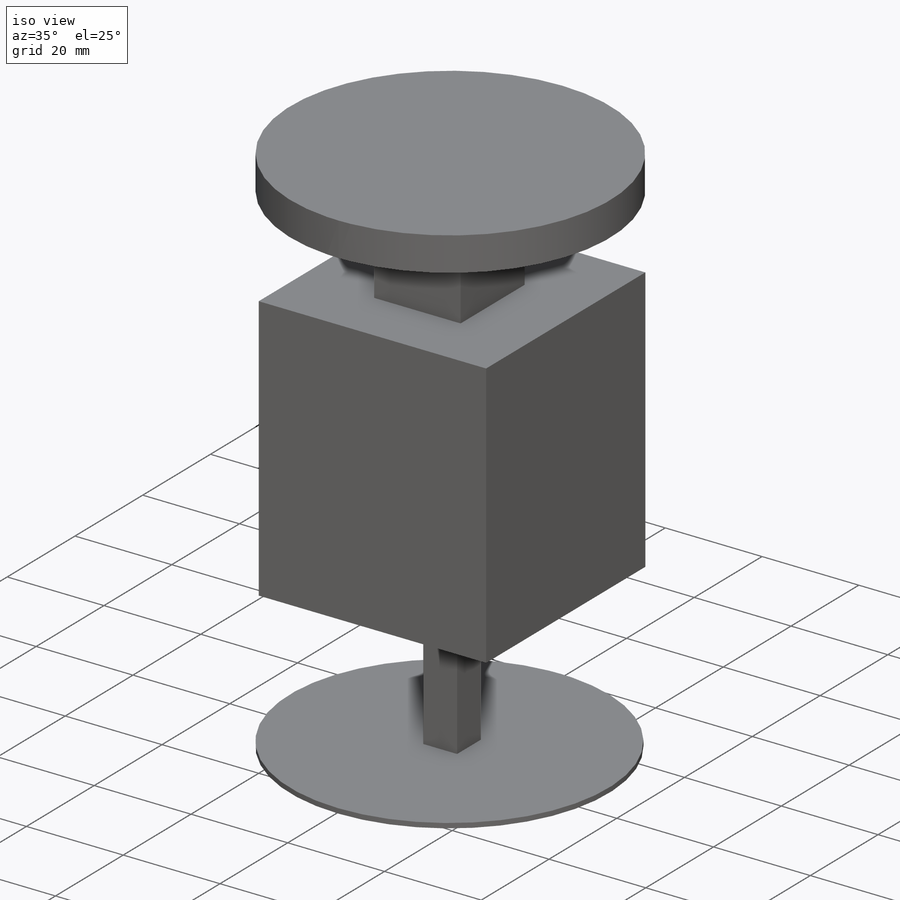
[diagram: iso view]
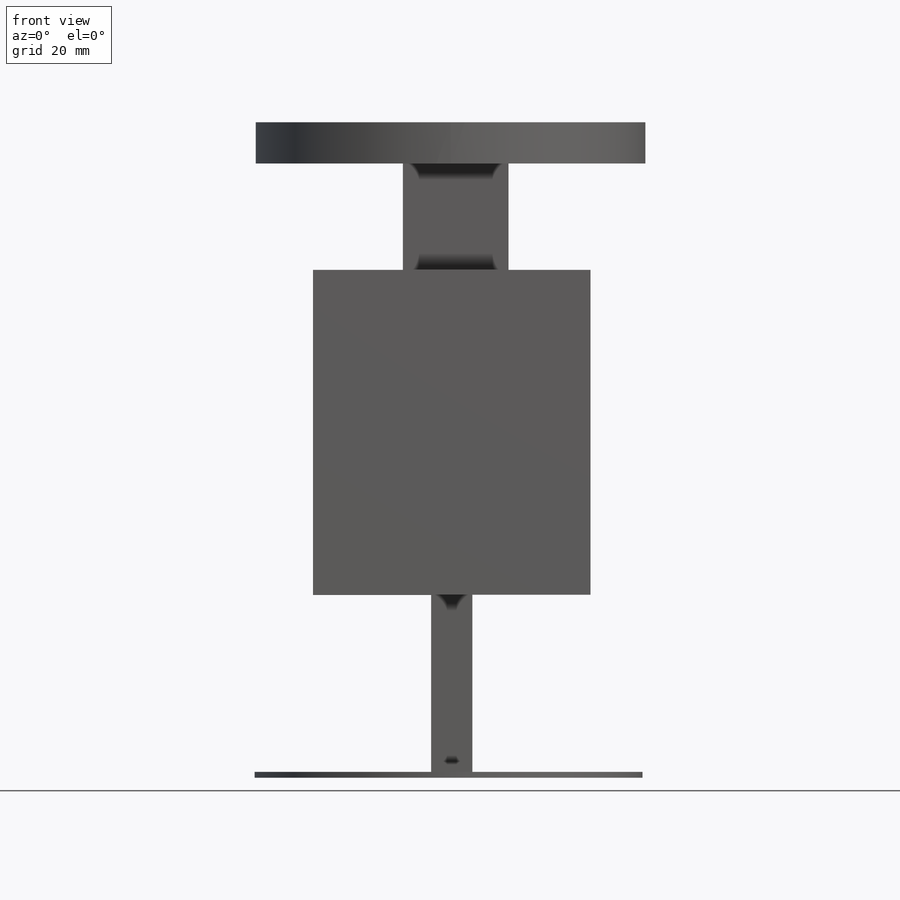
[diagram: front view]
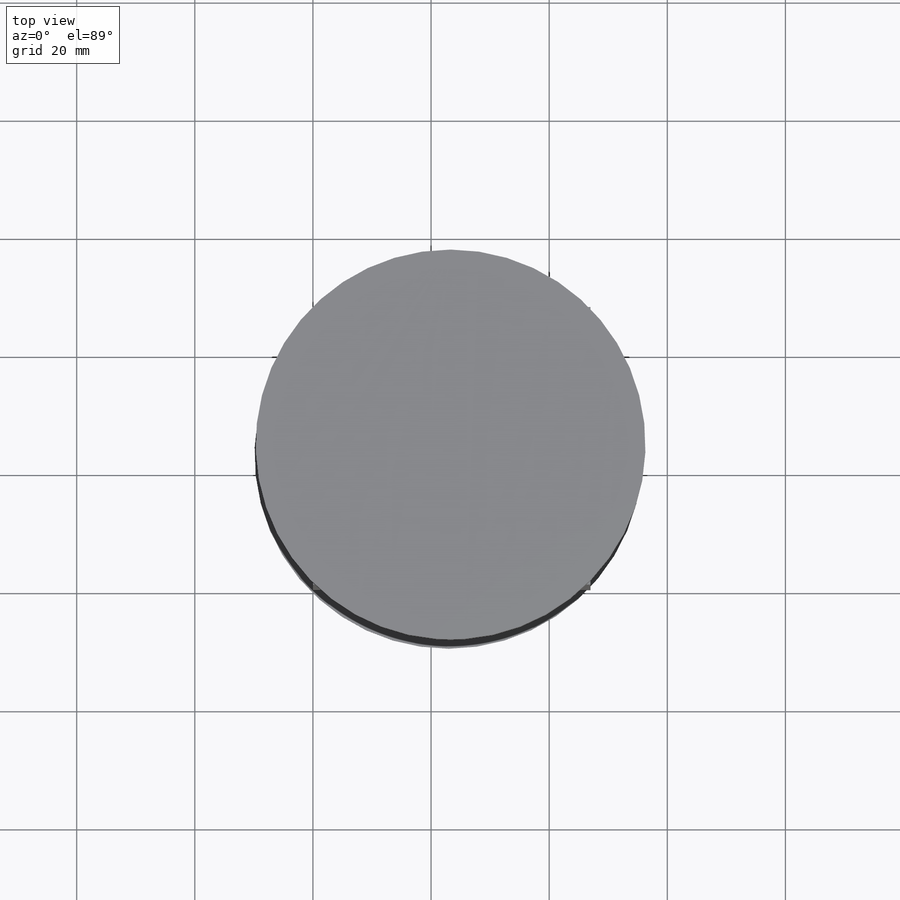
[diagram: top view]
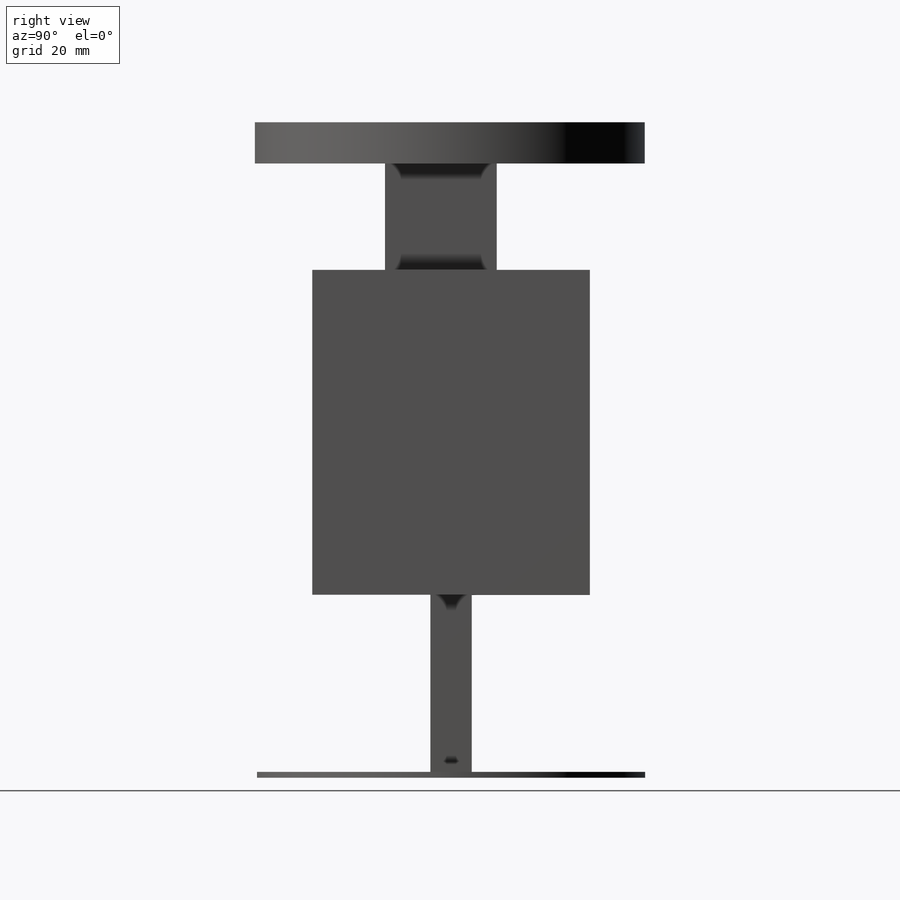
[diagram: right view]
SOLIDWORKS PART (.sldprt)
format: sldprt  version: not decoded by parser v0  size: 220,160 bytes
history: native  units: mm
features: sketch x8, extrude x4, cut_extrude x4, material x1 (+13 scaffold rows collapsed)
feature tree (30):
  scaffold x13  (default folders/planes/origin — collapsed)
  material  "Material <not specified>"
  sketch  "Sketch1"  dims[D1=47.0mm D2=47.0mm]
  extrude  "Boss-Extrude1"  Depth=85mm
  sketch  "Sketch2"  dims[D1=30.0mm]
  cut_extrude  "Cut-Extrude1"  Depth=20mm
  sketch  "Sketch3"
  cut_extrude  "Cut-Extrude2"  Depth=20mm
  sketch  "Sketch4"
  cut_extrude  "Cut-Extrude3"  Depth=20mm
  sketch  "Sketch5"
  cut_extrude  "Cut-Extrude4"  Depth=20mm
  sketch  "Sketch6"
  extrude  "Boss-Extrude2"  Depth=18mm
  sketch  "Sketch7"  dims[D1=66.0mm]
  extrude  "Boss-Extrude4"  Depth=7mm
  sketch  "Sketch9"
  extrude  "Boss-Extrude5"  Depth=1mm
decode coverage: 11 of 16 modeling features carry decoded parameters
note: suppression state not decoded; provenance and decode notes live in map.json
